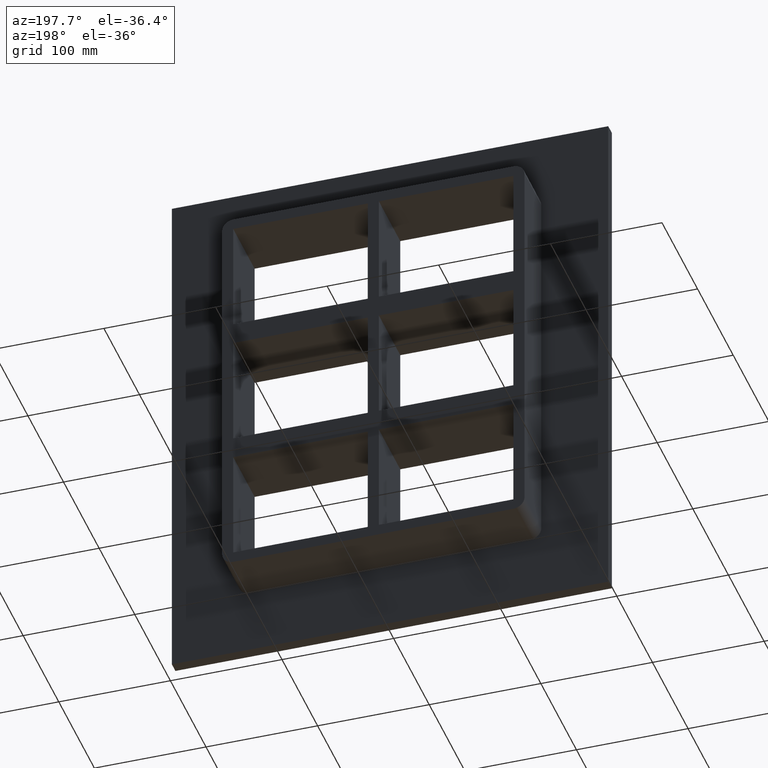
[diagram: clean part render]
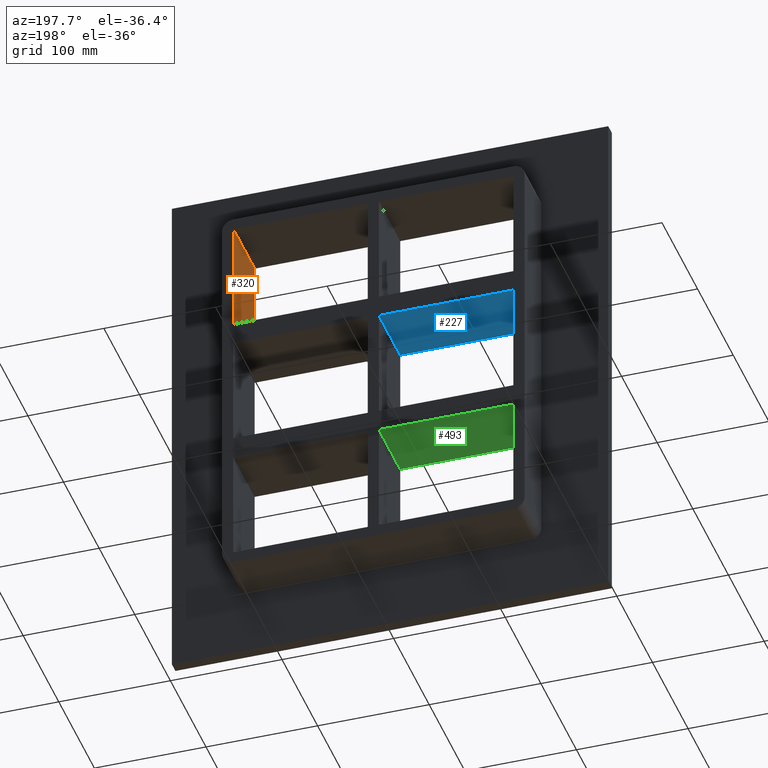
[diagram: same view with three faces highlighted in distinct colors, each labeled with its STEP entity id]
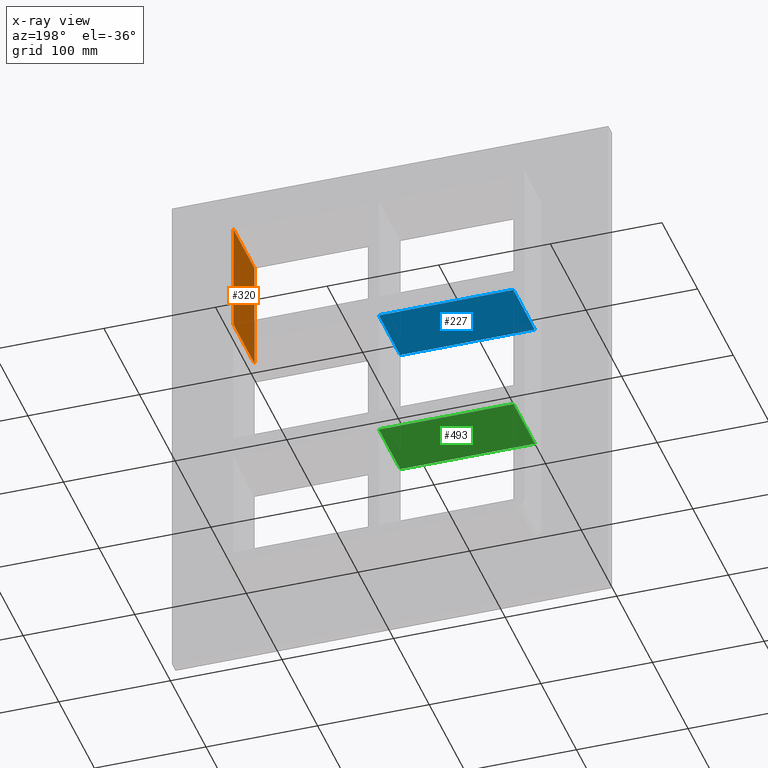
[diagram: x-ray of the same camera — body ghosted, the three highlighted faces saturated]
A machine part, auxiliary view with three faces highlighted in distinct colors.
The next image is the same camera in x-ray (body ghosted, the three faces saturated) — at least one of them is partly hidden behind the body in this view.
Their STEP definitions:

[orange] entity #320 — the highlighted planar face has unit normal (1, 0, 0).
#123=CARTESIAN_POINT('',(125.4999999999999,-3.0,70.499999999999901));
#124=VERTEX_POINT('',#123);
#131=CARTESIAN_POINT('',(125.49999999999989,57.0,70.499999999999901));
#132=VERTEX_POINT('',#131);
#133=CARTESIAN_POINT('',(125.49999999999999,57.000000000000007,70.499999999999901));
#134=DIRECTION('',(0.0,-1.0,0.0));
#135=VECTOR('',#134,60.000000000000007);
#136=LINE('',#133,#135);
#137=EDGE_CURVE('',#132,#124,#136,.T.);
#290=CARTESIAN_POINT('',(125.49999999999999,0.0,171.50000000000003));
#291=DIRECTION('',(1.0,0.0,0.0));
#292=DIRECTION('',(0.0,0.0,-1.0));
#293=AXIS2_PLACEMENT_3D('',#290,#291,#292);
#294=PLANE('',#293);
#295=ORIENTED_EDGE('',*,*,#137,.T.);
#296=CARTESIAN_POINT('',(125.49999999999999,-3.0,171.50000000000003));
#297=VERTEX_POINT('',#296);
#298=CARTESIAN_POINT('',(125.49999999999999,-3.0,171.50000000000003));
#299=DIRECTION('',(0.0,0.0,-1.0));
#300=VECTOR('',#299,101.00000000000013);
#301=LINE('',#298,#300);
#302=EDGE_CURVE('',#297,#124,#301,.T.);
#303=ORIENTED_EDGE('',*,*,#302,.F.);
#304=CARTESIAN_POINT('',(125.49999999999999,57.0,171.50000000000003));
#305=VERTEX_POINT('',#304);
#306=CARTESIAN_POINT('',(125.49999999999999,-3.0,171.50000000000003));
#307=DIRECTION('',(0.0,1.0,0.0));
#308=VECTOR('',#307,60.0);
#309=LINE('',#306,#308);
#310=EDGE_CURVE('',#297,#305,#309,.T.);
#311=ORIENTED_EDGE('',*,*,#310,.T.);
#312=CARTESIAN_POINT('',(125.49999999999999,57.0,70.499999999999901));
#313=DIRECTION('',(0.0,0.0,1.0));
#314=VECTOR('',#313,101.00000000000013);
#315=LINE('',#312,#314);
#316=EDGE_CURVE('',#132,#305,#315,.T.);
#317=ORIENTED_EDGE('',*,*,#316,.F.);
#318=EDGE_LOOP('',(#295,#303,#311,#317));
#319=FACE_OUTER_BOUND('',#318,.T.);
#320=ADVANCED_FACE('',(#319),#294,.F.);

[blue] entity #227 — the highlighted planar face has unit normal (0, 0, -1).
#188=CARTESIAN_POINT('',(125.50000000000182,-3.0,50.499999999990649));
#189=DIRECTION('',(0.0,0.0,-1.0));
#190=DIRECTION('',(-1.0,0.0,0.0));
#191=AXIS2_PLACEMENT_3D('',#188,#189,#190);
#192=PLANE('',#191);
#193=CARTESIAN_POINT('',(-5.00000000000135,-3.0,50.499999999990585));
#194=VERTEX_POINT('',#193);
#195=CARTESIAN_POINT('',(-5.000000000001349,57.0,50.499999999990557));
#196=VERTEX_POINT('',#195);
#197=CARTESIAN_POINT('',(-5.00000000000135,-3.0,50.499999999990564));
#198=DIRECTION('',(0.0,1.0,0.0));
#199=VECTOR('',#198,60.0);
#200=LINE('',#197,#199);
#201=EDGE_CURVE('',#194,#196,#200,.T.);
#202=ORIENTED_EDGE('',*,*,#201,.F.);
#203=CARTESIAN_POINT('',(-125.4999999999997,-3.0,50.499999999990521));
#204=VERTEX_POINT('',#203);
#205=CARTESIAN_POINT('',(-5.000000000001364,-3.0,50.499999999990585));
#206=DIRECTION('',(-1.0,0.0,0.0));
#207=VECTOR('',#206,120.49999999999832);
#208=LINE('',#205,#207);
#209=EDGE_CURVE('',#194,#204,#208,.T.);
#210=ORIENTED_EDGE('',*,*,#209,.T.);
#211=CARTESIAN_POINT('',(-125.4999999999997,57.0,50.499999999990521));
#212=VERTEX_POINT('',#211);
#213=CARTESIAN_POINT('',(-125.5,57.000000000000007,50.499999999990507));
#214=DIRECTION('',(0.0,-1.0,0.0));
#215=VECTOR('',#214,60.000000000000007);
#216=LINE('',#213,#215);
#217=EDGE_CURVE('',#212,#204,#216,.T.);
#218=ORIENTED_EDGE('',*,*,#217,.F.);
#219=CARTESIAN_POINT('',(-5.000000000001364,57.0,50.499999999990585));
#220=DIRECTION('',(-1.0,0.0,0.0));
#221=VECTOR('',#220,120.49999999999832);
#222=LINE('',#219,#221);
#223=EDGE_CURVE('',#196,#212,#222,.T.);
#224=ORIENTED_EDGE('',*,*,#223,.F.);
#225=EDGE_LOOP('',(#202,#210,#218,#224));
#226=FACE_OUTER_BOUND('',#225,.T.);
#227=ADVANCED_FACE('',(#226),#192,.T.);

[green] entity #493 — the highlighted planar face has unit normal (0, 0, -1).
#454=CARTESIAN_POINT('',(125.50000000000182,-3.0,-70.500000000009365));
#455=DIRECTION('',(0.0,0.0,-1.0));
#456=DIRECTION('',(-1.0,0.0,0.0));
#457=AXIS2_PLACEMENT_3D('',#454,#455,#456);
#458=PLANE('',#457);
#459=CARTESIAN_POINT('',(-5.000000000001332,-3.0,-70.500000000009436));
#460=VERTEX_POINT('',#459);
#461=CARTESIAN_POINT('',(-5.000000000001332,57.0,-70.500000000009436));
#462=VERTEX_POINT('',#461);
#463=CARTESIAN_POINT('',(-5.000000000001332,-3.0,-70.50000000000945));
#464=DIRECTION('',(0.0,1.0,0.0));
#465=VECTOR('',#464,60.0);
#466=LINE('',#463,#465);
#467=EDGE_CURVE('',#460,#462,#466,.T.);
#468=ORIENTED_EDGE('',*,*,#467,.F.);
#469=CARTESIAN_POINT('',(-125.4999999999997,-3.0,-70.500000000009493));
#470=VERTEX_POINT('',#469);
#471=CARTESIAN_POINT('',(-5.000000000001336,-3.0,-70.500000000009436));
#472=DIRECTION('',(-1.0,0.0,0.0));
#473=VECTOR('',#472,120.49999999999835);
#474=LINE('',#471,#473);
#475=EDGE_CURVE('',#460,#470,#474,.T.);
#476=ORIENTED_EDGE('',*,*,#475,.T.);
#477=CARTESIAN_POINT('',(-125.4999999999997,57.0,-70.500000000009493));
#478=VERTEX_POINT('',#477);
#479=CARTESIAN_POINT('',(-125.5,57.000000000000007,-70.500000000009507));
#480=DIRECTION('',(0.0,-1.0,0.0));
#481=VECTOR('',#480,60.000000000000007);
#482=LINE('',#479,#481);
#483=EDGE_CURVE('',#478,#470,#482,.T.);
#484=ORIENTED_EDGE('',*,*,#483,.F.);
#485=CARTESIAN_POINT('',(-5.000000000001336,57.0,-70.500000000009436));
#486=DIRECTION('',(-1.0,0.0,0.0));
#487=VECTOR('',#486,120.49999999999835);
#488=LINE('',#485,#487);
#489=EDGE_CURVE('',#462,#478,#488,.T.);
#490=ORIENTED_EDGE('',*,*,#489,.F.);
#491=EDGE_LOOP('',(#468,#476,#484,#490));
#492=FACE_OUTER_BOUND('',#491,.T.);
#493=ADVANCED_FACE('',(#492),#458,.T.);